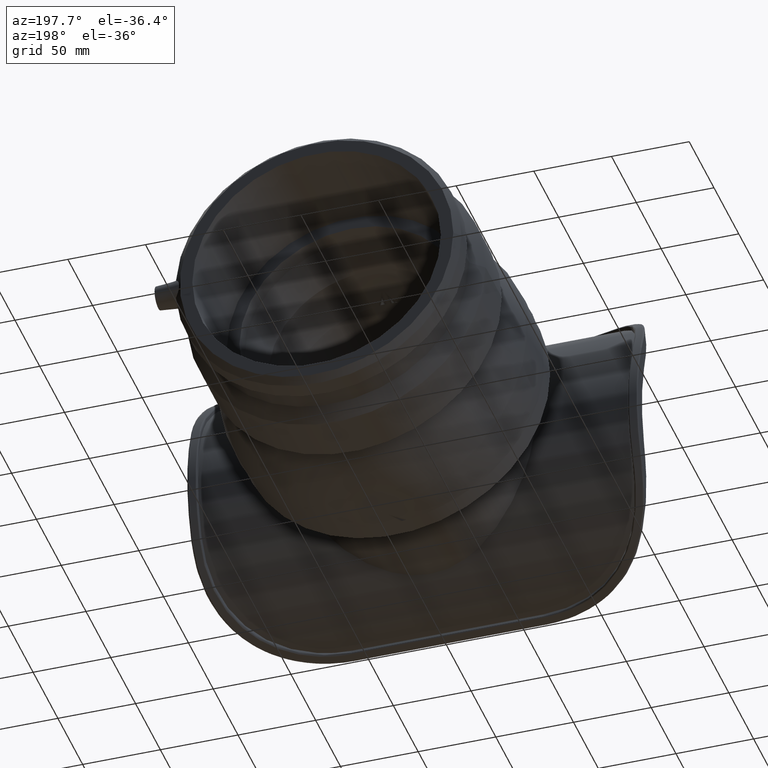
[diagram: clean part render]
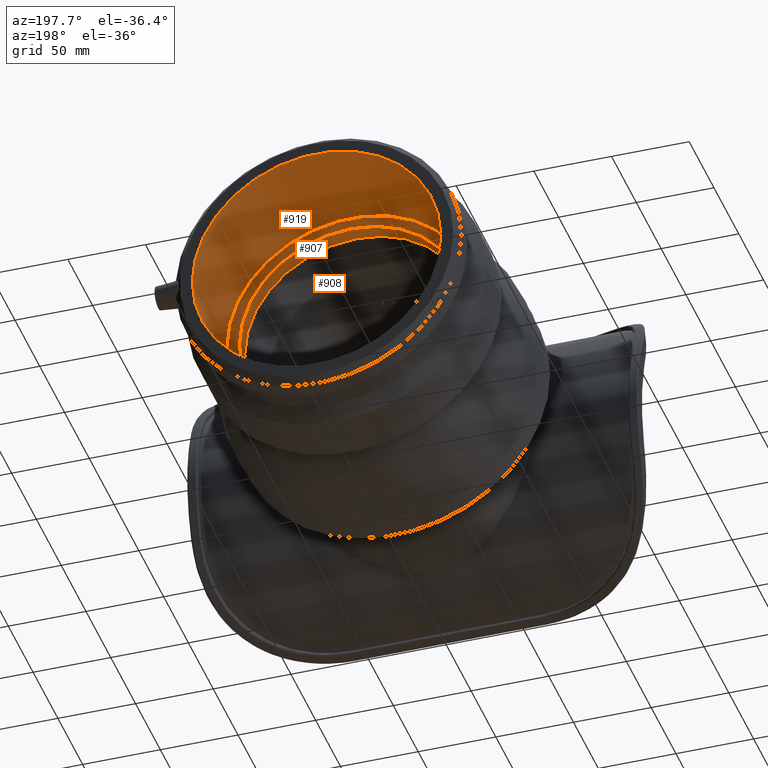
[diagram: same view with one multi-face feature highlighted, each face labeled with its STEP entity id]
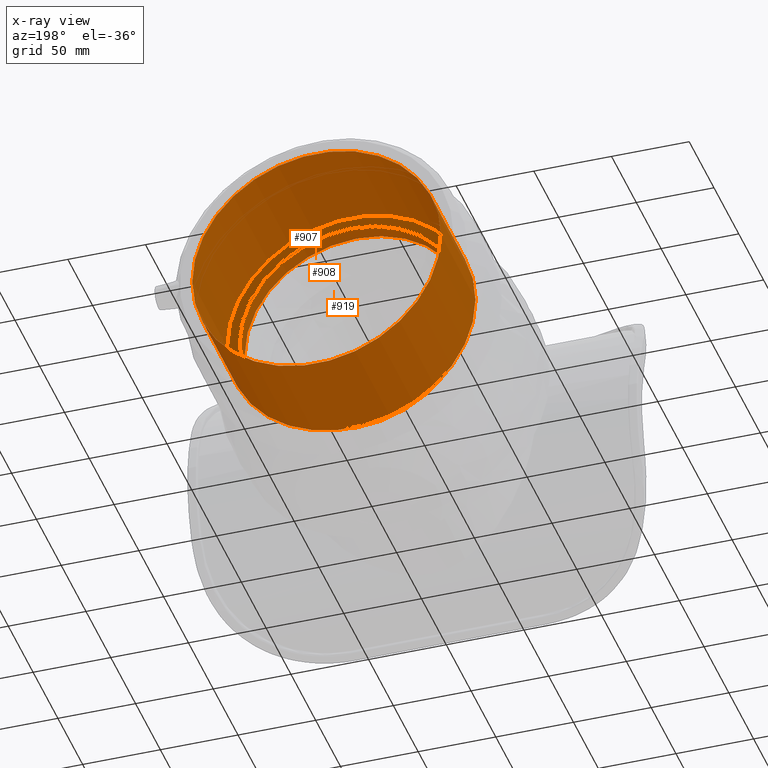
[diagram: x-ray of the same camera — body ghosted, the whole feature saturated]
A machine part, auxiliary view. The highlighted faces form ONE feature: a stepped (counterbored) hole: 2 coaxial cylindrical walls of radii 72 -> 80 mm joined by 1 annular planar shoulder face(s). The faces share edges in the B-rep.
The next image is the same camera in x-ray: the body ghosted and the whole hole feature saturated, so the bore chain is visible through the body.
Their STEP definitions:
[1] entity #919 (Cylinder):
#162=FACE_BOUND('',#324,.T.);
#179=CYLINDRICAL_SURFACE('',#1020,80.);
#226=FACE_OUTER_BOUND('',#323,.T.);
#323=EDGE_LOOP('',(#704));
#324=EDGE_LOOP('',(#705));
#384=CIRCLE('',#999,80.);
#393=CIRCLE('',#1019,80.);
#449=VERTEX_POINT('',#1645);
#456=VERTEX_POINT('',#1672);
#536=EDGE_CURVE('',#449,#449,#384,.T.);
#545=EDGE_CURVE('',#456,#456,#393,.T.);
#704=ORIENTED_EDGE('',*,*,#536,.F.);
#705=ORIENTED_EDGE('',*,*,#545,.T.);
#919=ADVANCED_FACE('',(#226,#162),#179,.F.);
#999=AXIS2_PLACEMENT_3D('',#1646,#1159,#1160);
#1019=AXIS2_PLACEMENT_3D('',#1673,#1199,#1200);
#1020=AXIS2_PLACEMENT_3D('',#1674,#1201,#1202);
#1159=DIRECTION('center_axis',(0.,1.,0.));
#1160=DIRECTION('ref_axis',(1.,0.,0.));
#1199=DIRECTION('center_axis',(0.,1.,0.));
#1200=DIRECTION('ref_axis',(1.,0.,0.));
#1201=DIRECTION('center_axis',(0.,1.,0.));
#1202=DIRECTION('ref_axis',(-1.,0.,0.));
#1645=CARTESIAN_POINT('',(-80.,91.6,0.));
#1646=CARTESIAN_POINT('Origin',(0.,91.6,0.));
#1672=CARTESIAN_POINT('',(-80.,161.6,0.));
#1673=CARTESIAN_POINT('Origin',(0.,161.6,0.));
#1674=CARTESIAN_POINT('Origin',(0.,126.6,0.));
[2] entity #908 (Cylinder):
#153=FACE_BOUND('',#304,.T.);
#174=CYLINDRICAL_SURFACE('',#1001,72.);
#215=FACE_OUTER_BOUND('',#303,.T.);
#303=EDGE_LOOP('',(#676));
#304=EDGE_LOOP('',(#677));
#379=CIRCLE('',#989,72.);
#385=CIRCLE('',#1000,72.);
#444=VERTEX_POINT('',#1630);
#450=VERTEX_POINT('',#1647);
#531=EDGE_CURVE('',#444,#444,#379,.T.);
#537=EDGE_CURVE('',#450,#450,#385,.T.);
#676=ORIENTED_EDGE('',*,*,#531,.F.);
#677=ORIENTED_EDGE('',*,*,#537,.T.);
#908=ADVANCED_FACE('',(#215,#153),#174,.F.);
#989=AXIS2_PLACEMENT_3D('',#1631,#1139,#1140);
#1000=AXIS2_PLACEMENT_3D('',#1648,#1161,#1162);
#1001=AXIS2_PLACEMENT_3D('',#1649,#1163,#1164);
#1139=DIRECTION('center_axis',(0.,1.,0.));
#1140=DIRECTION('ref_axis',(1.,0.,0.));
#1161=DIRECTION('center_axis',(0.,1.,0.));
#1162=DIRECTION('ref_axis',(1.,0.,0.));
#1163=DIRECTION('center_axis',(0.,1.,0.));
#1164=DIRECTION('ref_axis',(-1.,0.,0.));
#1630=CARTESIAN_POINT('',(-72.,80.8,0.));
#1631=CARTESIAN_POINT('Origin',(0.,80.8,0.));
#1647=CARTESIAN_POINT('',(-72.,91.6,0.));
#1648=CARTESIAN_POINT('Origin',(0.,91.6,0.));
#1649=CARTESIAN_POINT('Origin',(0.,86.2,0.));
[3] entity #907 (Plane):
#152=FACE_BOUND('',#302,.T.);
#214=FACE_OUTER_BOUND('',#301,.T.);
#301=EDGE_LOOP('',(#674));
#302=EDGE_LOOP('',(#675));
#384=CIRCLE('',#999,80.);
#385=CIRCLE('',#1000,72.);
#449=VERTEX_POINT('',#1645);
#450=VERTEX_POINT('',#1647);
#536=EDGE_CURVE('',#449,#449,#384,.T.);
#537=EDGE_CURVE('',#450,#450,#385,.T.);
#674=ORIENTED_EDGE('',*,*,#536,.T.);
#675=ORIENTED_EDGE('',*,*,#537,.F.);
#876=PLANE('',#998);
#907=ADVANCED_FACE('',(#214,#152),#876,.T.);
#998=AXIS2_PLACEMENT_3D('',#1644,#1157,#1158);
#999=AXIS2_PLACEMENT_3D('',#1646,#1159,#1160);
#1000=AXIS2_PLACEMENT_3D('',#1648,#1161,#1162);
#1157=DIRECTION('center_axis',(0.,1.,0.));
#1158=DIRECTION('ref_axis',(0.,0.,1.));
#1159=DIRECTION('center_axis',(0.,1.,0.));
#1160=DIRECTION('ref_axis',(1.,0.,0.));
#1161=DIRECTION('center_axis',(0.,1.,0.));
#1162=DIRECTION('ref_axis',(1.,0.,0.));
#1644=CARTESIAN_POINT('Origin',(-72.,91.6,0.));
#1645=CARTESIAN_POINT('',(-80.,91.6,0.));
#1646=CARTESIAN_POINT('Origin',(0.,91.6,0.));
#1647=CARTESIAN_POINT('',(-72.,91.6,0.));
#1648=CARTESIAN_POINT('Origin',(0.,91.6,0.));